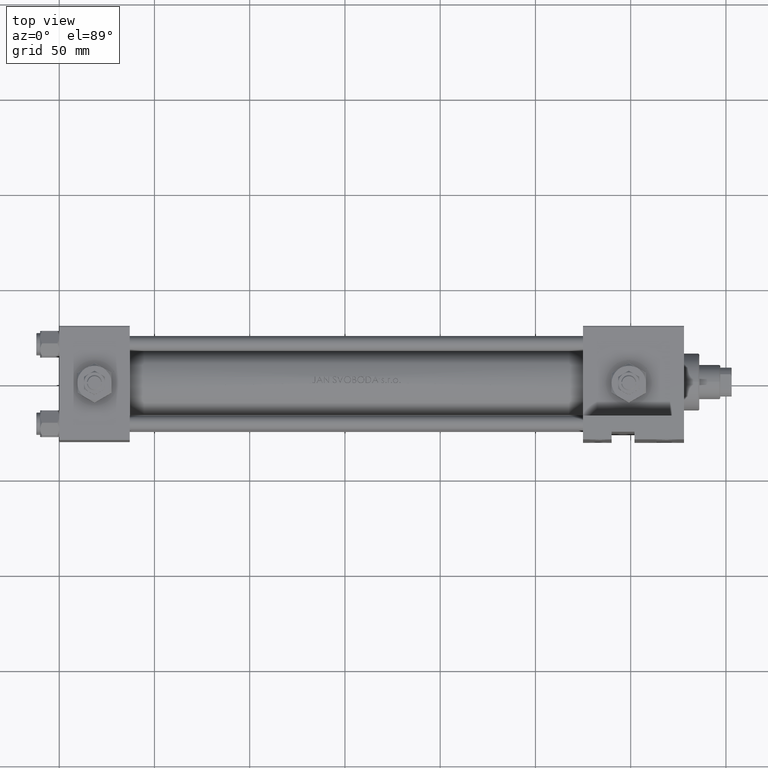
[diagram: clean part render]
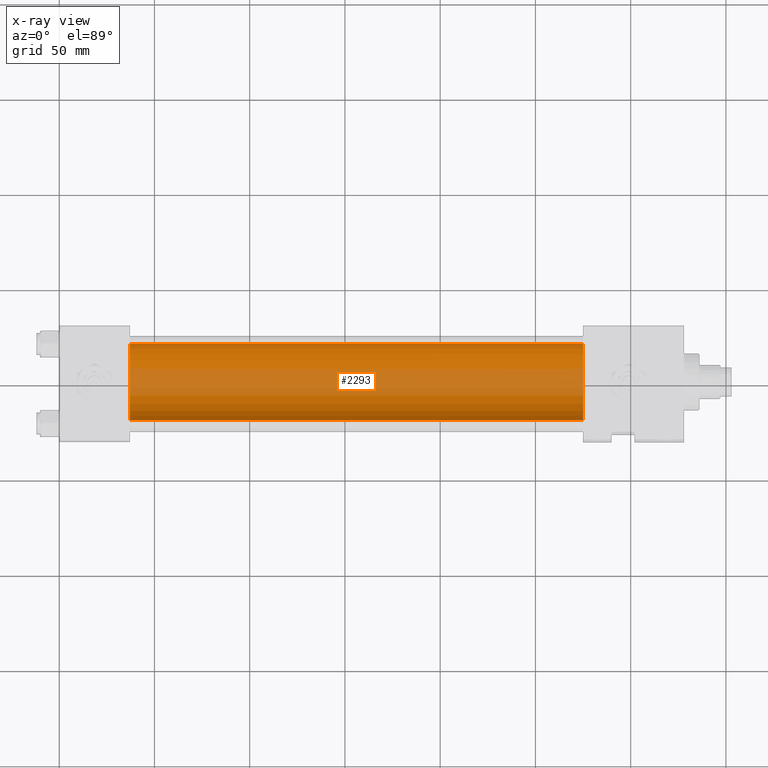
[diagram: x-ray — body ghosted, one internal face saturated and labeled with its STEP entity id]
A machine part, top view, then the same camera in x-ray: the body is ghosted and one INTERNAL B-rep face — a face not visible from any outside direction — is saturated and labeled: STEP entity #2293.
In plain terms, the highlighted cylindrical surface (partial cylindrical patch) has radius 20 mm, axis along (-1, -0, 0).
Its self-contained STEP definition (entity closure, byte-faithful):
#2293 = ADVANCED_FACE ( 'NONE', ( #45226 ), #6213, .F. ) ;
#2347 = DIRECTION ( 'NONE',  ( 0.000000000000000000, 0.000000000000000000, 1.000000000000000000 ) ) ;
#2671 = DIRECTION ( 'NONE',  ( 1.000000000000000000, 0.000000000000000000, 0.000000000000000000 ) ) ;
#3458 = DIRECTION ( 'NONE',  ( 0.000000000000000000, 0.000000000000000000, -1.000000000000000000 ) ) ;
#5384 = VECTOR ( 'NONE', #8698, 1000.000000000000000 ) ;
#5628 = VERTEX_POINT ( 'NONE', #50709 ) ;
#6213 = CYLINDRICAL_SURFACE ( 'NONE', #41495, 20.00000000000000000 ) ;
#7085 = VERTEX_POINT ( 'NONE', #23672 ) ;
#8480 = VERTEX_POINT ( 'NONE', #18448 ) ;
#8698 = DIRECTION ( 'NONE',  ( -1.000000000000000000, -0.000000000000000000, -0.000000000000000000 ) ) ;
#8985 = ORIENTED_EDGE ( 'NONE', *, *, #13404, .T. ) ;
#9106 = ORIENTED_EDGE ( 'NONE', *, *, #19715, .F. ) ;
#11066 = EDGE_LOOP ( 'NONE', ( #9106, #40389, #8985, #31565 ) ) ;
#12531 = EDGE_CURVE ( 'NONE', #7085, #31817, #29907, .T. ) ;
#13404 = EDGE_CURVE ( 'NONE', #31817, #8480, #24827, .T. ) ;
#14423 = CARTESIAN_POINT ( 'NONE',  ( 274.9999999999999432, -1.224646799147354686E-16, 1.000000000000000888 ) ) ;
#16394 = CIRCLE ( 'NONE', #24582, 20.00000000000000000 ) ;
#18060 = CARTESIAN_POINT ( 'NONE',  ( 274.9999999999999432, -1.224646799147354686E-16, 1.000000000000000888 ) ) ;
#18448 = CARTESIAN_POINT ( 'NONE',  ( 37.00000000000000000, -1.224646799147354686E-16, 21.00000000000000000 ) ) ;
#19715 = EDGE_CURVE ( 'NONE', #7085, #5628, #25421, .T. ) ;
#21699 = AXIS2_PLACEMENT_3D ( 'NONE', #18060, #2671, #42702 ) ;
#23672 = CARTESIAN_POINT ( 'NONE',  ( 274.9999999999999432, 2.326828918379970970E-15, -19.00000000000000000 ) ) ;
#24582 = AXIS2_PLACEMENT_3D ( 'NONE', #49917, #30403, #3458 ) ;
#24827 = LINE ( 'NONE', #28191, #5384 ) ;
#25171 = CARTESIAN_POINT ( 'NONE',  ( 274.9999999999999432, 2.326828918379970970E-15, -19.00000000000000000 ) ) ;
#25421 = LINE ( 'NONE', #25171, #29250 ) ;
#28191 = CARTESIAN_POINT ( 'NONE',  ( 274.9999999999999432, -1.224646799147354686E-16, 21.00000000000000000 ) ) ;
#29250 = VECTOR ( 'NONE', #29282, 1000.000000000000000 ) ;
#29282 = DIRECTION ( 'NONE',  ( -1.000000000000000000, -0.000000000000000000, -0.000000000000000000 ) ) ;
#29907 = CIRCLE ( 'NONE', #21699, 20.00000000000000000 ) ;
#30403 = DIRECTION ( 'NONE',  ( 1.000000000000000000, 0.000000000000000000, 0.000000000000000000 ) ) ;
#31565 = ORIENTED_EDGE ( 'NONE', *, *, #33289, .F. ) ;
#31817 = VERTEX_POINT ( 'NONE', #36111 ) ;
#33289 = EDGE_CURVE ( 'NONE', #5628, #8480, #16394, .T. ) ;
#36111 = CARTESIAN_POINT ( 'NONE',  ( 274.9999999999999432, -1.224646799147354686E-16, 21.00000000000000000 ) ) ;
#37529 = DIRECTION ( 'NONE',  ( -1.000000000000000000, -0.000000000000000000, -0.000000000000000000 ) ) ;
#40389 = ORIENTED_EDGE ( 'NONE', *, *, #12531, .T. ) ;
#41495 = AXIS2_PLACEMENT_3D ( 'NONE', #14423, #37529, #2347 ) ;
#42702 = DIRECTION ( 'NONE',  ( 0.000000000000000000, 0.000000000000000000, -1.000000000000000000 ) ) ;
#45226 = FACE_OUTER_BOUND ( 'NONE', #11066, .T. ) ;
#49917 = CARTESIAN_POINT ( 'NONE',  ( 37.00000000000000000, -1.224646799147354686E-16, 1.000000000000000888 ) ) ;
#50709 = CARTESIAN_POINT ( 'NONE',  ( 37.00000000000000000, 2.326828918379970970E-15, -19.00000000000000000 ) ) ;